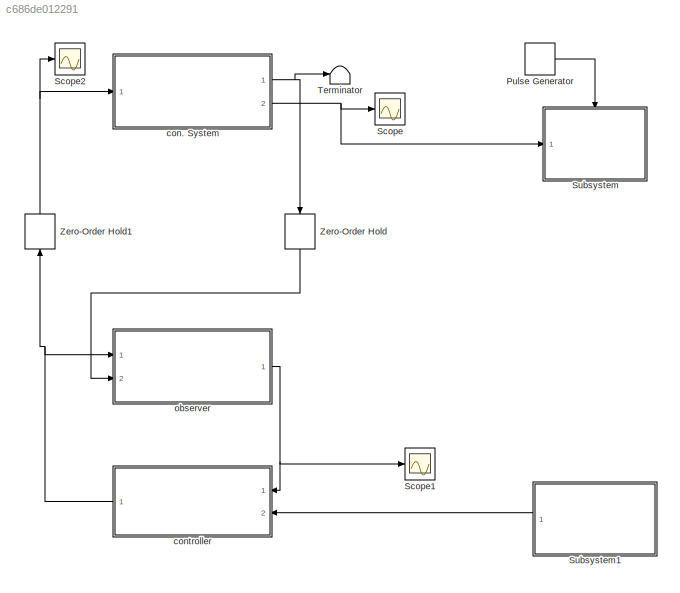
MODEL slx_c686de012291
KIND model
CONFIG AbsTol = auto
CONFIG EnableMultiTasking = off
CONFIG FixedStep = auto
CONFIG MaxStep = auto
CONFIG MinStep = auto
CONFIG RelTol = 1e-3
CONFIG SampleTimeConstraint = Unconstrained
CONFIG Solver = VariableStepAuto
CONFIG SolverName = VariableStepAuto
CONFIG StartTime = 0.0
CONFIG StopTime = 300
BLOCK [DiscretePulseGenerator] Pulse Generator
  Period = Ts
  Ports = [0, 1]
  PulseType = Time based
  PulseWidth = 50
BLOCK [Scope] Scope
  Floating = off
  NumInputPorts = 1
  Ports = [1]
  ScopeSpecificationString = Simulink.scopes.TimeScopeBlockCfg('CurrentConfiguration', extmgr.ConfigurationSet(extmgr.Configuration('Core','General UI',true),extmgr.Configuration('Core','Source UI',true),extmgr.Configuration('Sources','WiredSimulink',true),extmgr.Configuration('Visuals','Time Domain',true,'SerializedDisplays',{struct('MinYLimReal','-12.2747','MaxYLimReal','7.41708','YLabelReal','','MinYLimMag','0.00000','MaxY...<+1490ch>
BLOCK [Scope] Scope1
  Floating = off
  NumInputPorts = 1
  Ports = [1]
  ScopeSpecificationString = Simulink.scopes.TimeScopeBlockCfg('CurrentConfiguration', extmgr.ConfigurationSet(extmgr.Configuration('Core','General UI',true),extmgr.Configuration('Core','Source UI',true),extmgr.Configuration('Sources','WiredSimulink',true,'DataLoggingVariableName','ScopeData1'),extmgr.Configuration('Visuals','Time Domain',true,'SerializedDisplays',{struct('MinYLimReal','-0.49695','MaxYLimReal','0.91992','YLab...<+1462ch>
BLOCK [Scope] Scope2
  Floating = off
  NumInputPorts = 1
  Ports = [1]
  ScopeSpecificationString = Simulink.scopes.TimeScopeBlockCfg('CurrentConfiguration', extmgr.ConfigurationSet(extmgr.Configuration('Core','General UI',true),extmgr.Configuration('Core','Source UI',true),extmgr.Configuration('Sources','WiredSimulink',true,'DataLoggingVariableName','ScopeData2'),extmgr.Configuration('Visuals','Time Domain',true,'SerializedDisplays',{struct('MinYLimReal','-1.2371','MaxYLimReal','1.22997','YLabe...<+1425ch>
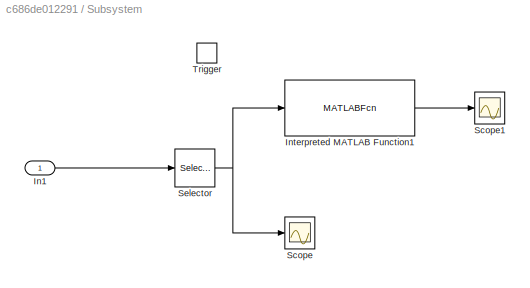
BLOCK [SubSystem] Subsystem
  Ports = [1, 0, 0, 1]
  RequestExecContextInheritance = off
BLOCK [Inport] Subsystem/In1
BLOCK [MATLABFcn] Subsystem/Interpreted MATLAB Function1
  MATLABFcn = draw_bb_1P
  OutputDimensions = 1
  Ports = [1, 1]
BLOCK [Scope] Subsystem/Scope
  Floating = off
  NumInputPorts = 1
  Ports = [1]
  ScopeSpecificationString = Simulink.scopes.TimeScopeBlockCfg('CurrentConfiguration', extmgr.ConfigurationSet(extmgr.Configuration('Core','General UI',true),extmgr.Configuration('Core','Source UI',true),extmgr.Configuration('Sources','WiredSimulink',true,'DataLoggingVariableName','ScopeData1'),extmgr.Configuration('Visuals','Time Domain',true,'SerializedDisplays',{struct('MinYLimReal','-0.49695','MaxYLimReal','0.91992','YLab...<+1436ch>
BLOCK [Scope] Subsystem/Scope1
  Floating = off
  NumInputPorts = 1
  Ports = [1]
  ScopeSpecificationString = Simulink.scopes.TimeScopeBlockCfg('CurrentConfiguration', extmgr.ConfigurationSet(extmgr.Configuration('Core','General UI',true),extmgr.Configuration('Core','Source UI',true),extmgr.Configuration('Sources','WiredSimulink',true,'DataLoggingVariableName','ScopeData1'),extmgr.Configuration('Visuals','Time Domain',true,'SerializedDisplays',{struct('MinYLimReal','-1.34033','MaxYLimReal','1.34039','YLab...<+1416ch>
BLOCK [Selector] Subsystem/Selector
  IndexOptions = Index vector (dialog)
  Indices = [1 3]
  InputPortWidth = 4
  OutputSizes = 1
  Ports = [1, 1]
BLOCK [TriggerPort] Subsystem/Trigger
  PortDimensions = 1
  Ports = []
  StatesWhenEnabling = held
  VariantControl = Variant
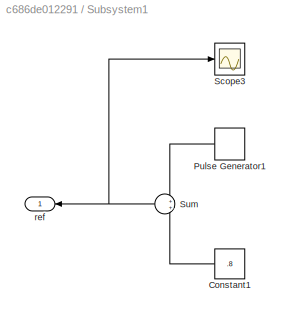
BLOCK [SubSystem] Subsystem1
  NameLocation = top
  Ports = [0, 1]
  RequestExecContextInheritance = off
BLOCK [Constant] Subsystem1/Constant1
  Value = .8
BLOCK [DiscretePulseGenerator] Subsystem1/Pulse Generator1
  Amplitude = -.8
  NameLocation = top
  Period = 20
  Ports = [0, 1]
  PulseType = Time based
  PulseWidth = 50
BLOCK [Scope] Subsystem1/Scope3
  Floating = off
  NumInputPorts = 1
  Ports = [1]
  ScopeSpecificationString = Simulink.scopes.TimeScopeBlockCfg('CurrentConfiguration', extmgr.ConfigurationSet(extmgr.Configuration('Core','General UI',true),extmgr.Configuration('Core','Source UI',true),extmgr.Configuration('Sources','WiredSimulink',true,'DataLoggingVariableName','ScopeData1'),extmgr.Configuration('Visuals','Time Domain',true,'SerializedDisplays',{struct('MinYLimReal','-3.375','MaxYLimReal','0.375','YLabelRe...<+1380ch>
BLOCK [Sum] Subsystem1/Sum
  NameLocation = top
  Ports = [2, 1]
BLOCK [Outport] Subsystem1/ref
BLOCK [Terminator] Terminator
BLOCK [ZeroOrderHold] Zero-Order Hold
  NameLocation = left
  SampleTime = Ts
BLOCK [ZeroOrderHold] Zero-Order Hold1
  NameLocation = right
  SampleTime = Ts
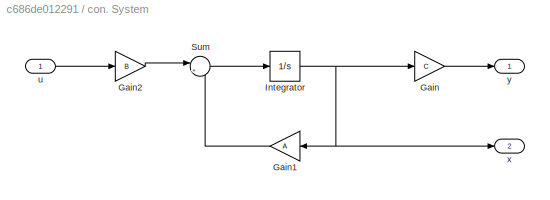
BLOCK [SubSystem] con. System
  Ports = [1, 2]
  RequestExecContextInheritance = off
BLOCK [Gain] con. System/Gain
  Gain = C
  Multiplication = Matrix(K*u)
BLOCK [Gain] con. System/Gain1
  Gain = A
  Multiplication = Matrix(K*u)
  NameLocation = top
BLOCK [Gain] con. System/Gain2
  Gain = B
  Multiplication = Matrix(K*u)
BLOCK [Integrator] con. System/Integrator
  InitialCondition = x0
  Ports = [1, 1]
BLOCK [Sum] con. System/Sum
  Inputs = |++
  Ports = [2, 1]
BLOCK [Inport] con. System/u
BLOCK [Outport] con. System/x
  Port = 2
BLOCK [Outport] con. System/y
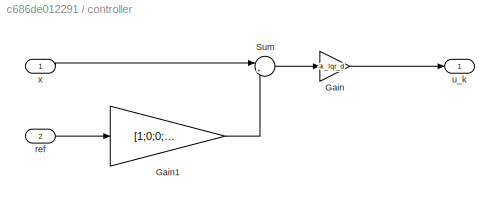
BLOCK [SubSystem] controller
  Ports = [2, 1]
  RequestExecContextInheritance = off
BLOCK [Gain] controller/Gain
  Gain = -k_lqr_d
  Multiplication = Matrix(K*u)
BLOCK [Gain] controller/Gain1
  Gain = [1;0;0;0]
  Multiplication = Matrix(K*u)
BLOCK [Sum] controller/Sum
  Inputs = |+-
  Ports = [2, 1]
BLOCK [Inport] controller/ref
  Port = 2
BLOCK [Outport] controller/u_k
BLOCK [Inport] controller/x
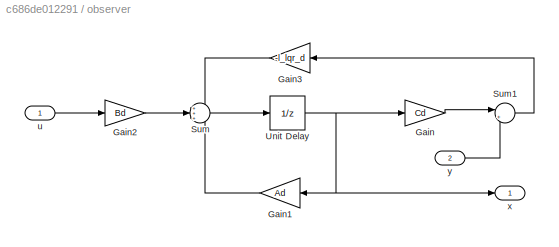
BLOCK [SubSystem] observer
  Ports = [2, 1]
  RequestExecContextInheritance = off
BLOCK [Gain] observer/Gain
  Gain = Cd
  Multiplication = Matrix(K*u)
BLOCK [Gain] observer/Gain1
  Gain = Ad
  Multiplication = Matrix(K*u)
  NameLocation = top
BLOCK [Gain] observer/Gain2
  Gain = Bd
  Multiplication = Matrix(K*u)
BLOCK [Gain] observer/Gain3
  Gain = -l_lqr_d
  Multiplication = Matrix(u*K)
  NameLocation = top
BLOCK [Sum] observer/Sum
  Inputs = +++
  Ports = [3, 1]
BLOCK [Sum] observer/Sum1
  Inputs = |+-
  Ports = [2, 1]
BLOCK [UnitDelay] observer/Unit Delay
  HasFrameUpgradeWarning = on
  SampleTime = Ts
BLOCK [Inport] observer/u
BLOCK [Outport] observer/x
BLOCK [Inport] observer/y
  Port = 2
LINE Pulse Generator:1 -> Subsystem:trigger
LINE Subsystem/In1:1 -> Subsystem/Selector:1
LINE Subsystem/Interpreted MATLAB Function1:1 -> Subsystem/Scope1:1
NET Subsystem/Selector:1 -> Subsystem/Interpreted MATLAB Function1:1, Subsystem/Scope:1
LINE Subsystem1/Constant1:1 -> Subsystem1/Sum:2
LINE Subsystem1/Pulse Generator1:1 -> Subsystem1/Sum:1
NET Subsystem1/Sum:1 -> Subsystem1/Scope3:1, Subsystem1/ref:1
LINE Subsystem1:1 -> controller:2
NET Zero-Order Hold1:1 -> Scope2:1, con. System:1
LINE Zero-Order Hold:1 -> observer:2
LINE con. System/Gain1:1 -> con. System/Sum:2
LINE con. System/Gain2:1 -> con. System/Sum:1
LINE con. System/Gain:1 -> con. System/y:1
NET con. System/Integrator:1 -> con. System/Gain1:1, con. System/Gain:1, con. System/x:1
LINE con. System/Sum:1 -> con. System/Integrator:1
LINE con. System/u:1 -> con. System/Gain2:1
NET con. System:1 -> Terminator:1, Zero-Order Hold:1
NET con. System:2 -> Scope:1, Subsystem:1
LINE controller/Gain1:1 -> controller/Sum:2
LINE controller/Gain:1 -> controller/u_k:1
LINE controller/Sum:1 -> controller/Gain:1
LINE controller/ref:1 -> controller/Gain1:1
LINE controller/x:1 -> controller/Sum:1
NET controller:1 -> Zero-Order Hold1:1, observer:1
LINE observer/Gain1:1 -> observer/Sum:3
LINE observer/Gain2:1 -> observer/Sum:2
LINE observer/Gain3:1 -> observer/Sum:1
LINE observer/Gain:1 -> observer/Sum1:1
LINE observer/Sum1:1 -> observer/Gain3:1
LINE observer/Sum:1 -> observer/Unit Delay:1
NET observer/Unit Delay:1 -> observer/Gain1:1, observer/Gain:1, observer/x:1
LINE observer/u:1 -> observer/Gain2:1
LINE observer/y:1 -> observer/Sum1:2
NET observer:1 -> Scope1:1, controller:1
note: NET lines group one-source signal fan-out (src -> all destinations, sorted); 1:1 wires keep LINE
